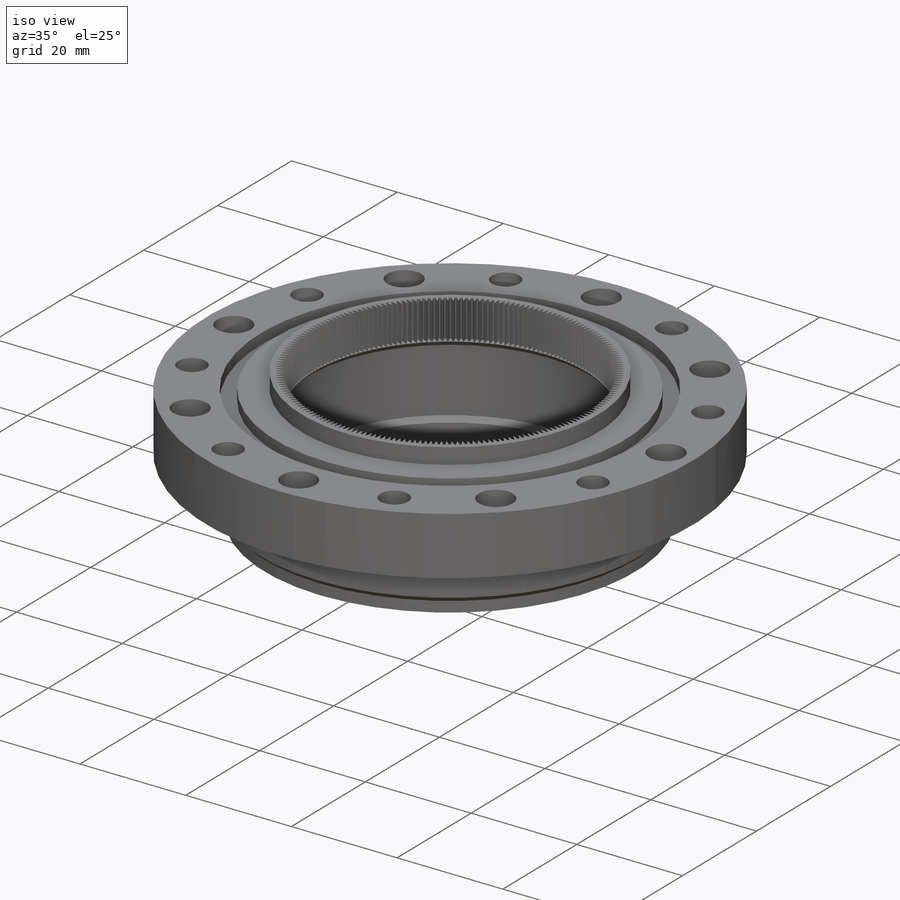
[diagram: iso view]
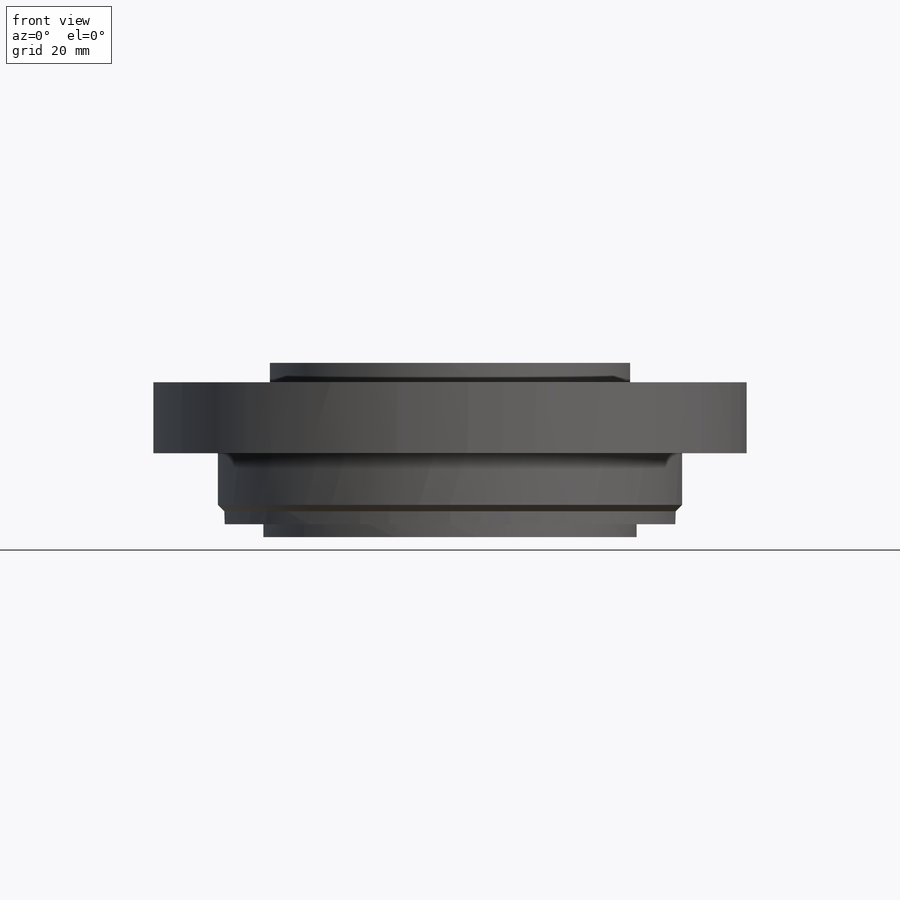
[diagram: front view]
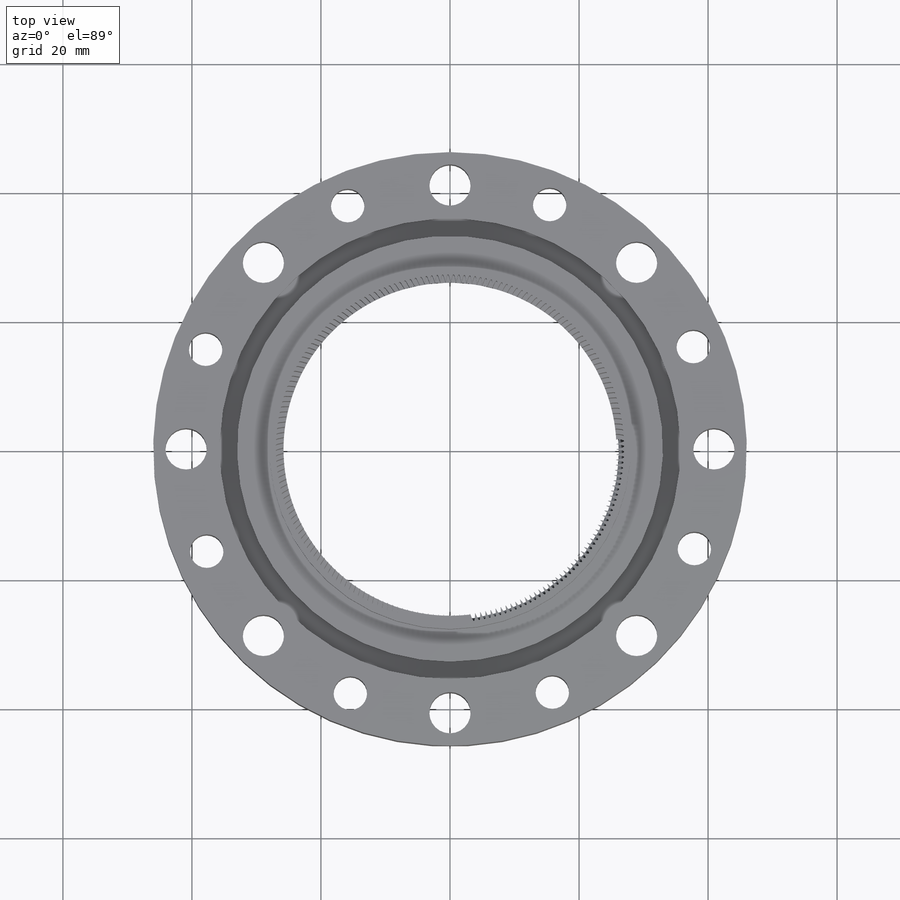
[diagram: top view]
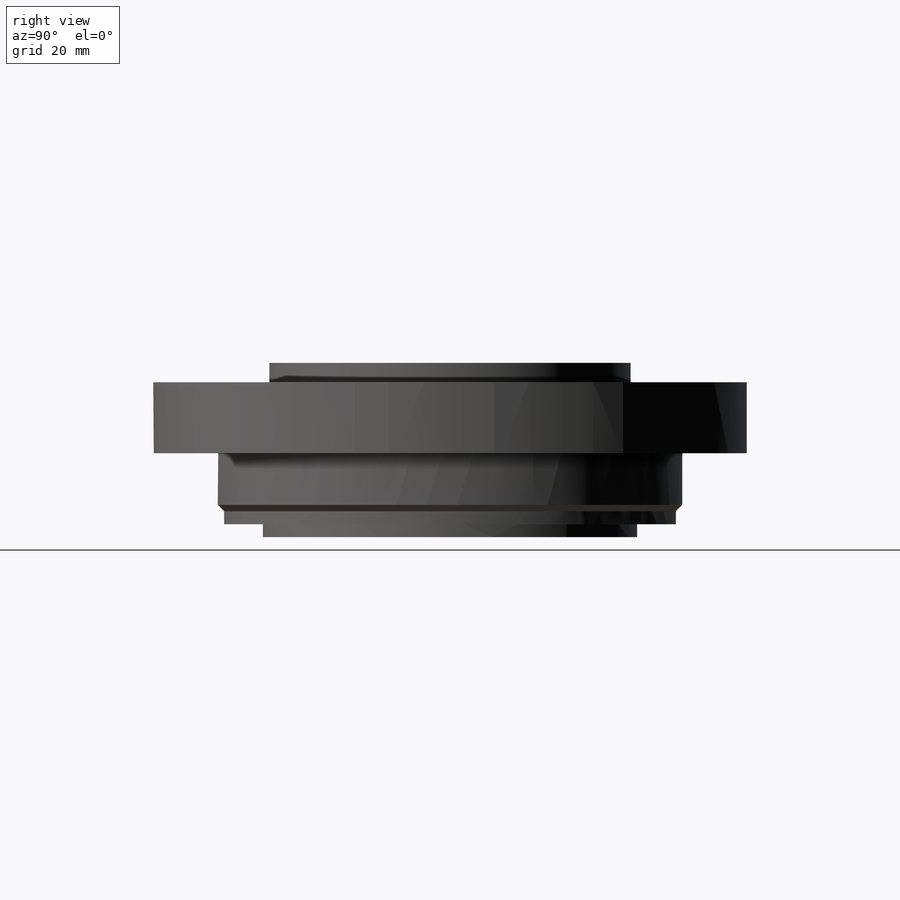
[diagram: right view]
SOLIDWORKS PART (.sldprt)
format: sldprt  version: not decoded by parser v0  size: 993,792 bytes
history: native  units: mm
features: sketch x13, cut_extrude x12, pattern_circular x4, plane x3, chamfer x2, thread x2, material x1, extrude x1 (+9 scaffold rows collapsed)
feature tree (47):
  scaffold x9  (default folders/planes/origin — collapsed)
  material  "材质 <未指定>"
  plane  "前视基准面"
  plane  "上视基准面"
  plane  "右视基准面"
  sketch  "草图1"  dims[D1=~45.368048mm]
  extrude  "凸台-拉伸1"  Depth=27mm
  sketch  "草图2"  dims[D1=~14.902979mm]
  cut_extrude  "切除-拉伸2"  Depth=13mm
  sketch  "草图3"  dims[D1=~10.595498mm]
  cut_extrude  "切除-拉伸3"  Depth=4mm
  chamfer  "倒角1"  Distance=1mm Angle=45deg
  sketch  "草图4"  dims[D1=~13.429794mm]
  cut_extrude  "切除-拉伸4"  Depth=2mm
  sketch  "草图5"  dims[D1=26.1mm]
  cut_extrude  "切除-拉伸5"  Depth=7mm
  sketch  "草图6"  dims[D1=~10.609073mm]
  cut_extrude  "切除-拉伸6"  Depth=3mm
  sketch  "草图7"  dims[D1=~39.163796mm]
  cut_extrude  "切除-拉伸7"  Depth=2mm
  sketch  "草图8"  dims[D1=~16.013447mm]
  cut_extrude  "切除-拉伸8"  Depth=8mm
  sketch  "草图9"
  cut_extrude  "切除-拉伸10"  Depth=12mm
  chamfer  "倒角2"  Distance=1mm Angle=45deg
  sketch  "草图10"  dims[D1=~3.563906mm]
  cut_extrude  "切除-拉伸11"  [1 undecoded]
  pattern_circular  "阵列(圆周)1"  Count=8 Angle=360deg
  sketch  "草图11"  dims[D1=2.5mm]
  cut_extrude  "切除-拉伸12"  [1 undecoded]
  thread  "装饰螺纹线4"  Diameter=5.21mm  [1 undecoded]
  pattern_circular  "阵列(圆周)2"  [2 undecoded]
  thread  "装饰螺纹线3"  Diameter=5.21mm  [1 undecoded]
  sketch  "草图12"  dims[D1=~1.46683mm]
  cut_extrude  "切除-拉伸13"  Depth=8mm
  pattern_circular  "阵列(圆周)3"  Count=12 Angle=360deg
  sketch  "草图13"
  cut_extrude  "切除-拉伸15"  Depth=7mm
  pattern_circular  "阵列(圆周)4"  Count=200 Angle=360deg
decode coverage: 29 of 34 modeling features carry decoded parameters
note: ~ marks probable driven/reference dimensions
note: 6 parameter values undecoded
note: suppression state not decoded; provenance and decode notes live in map.json
